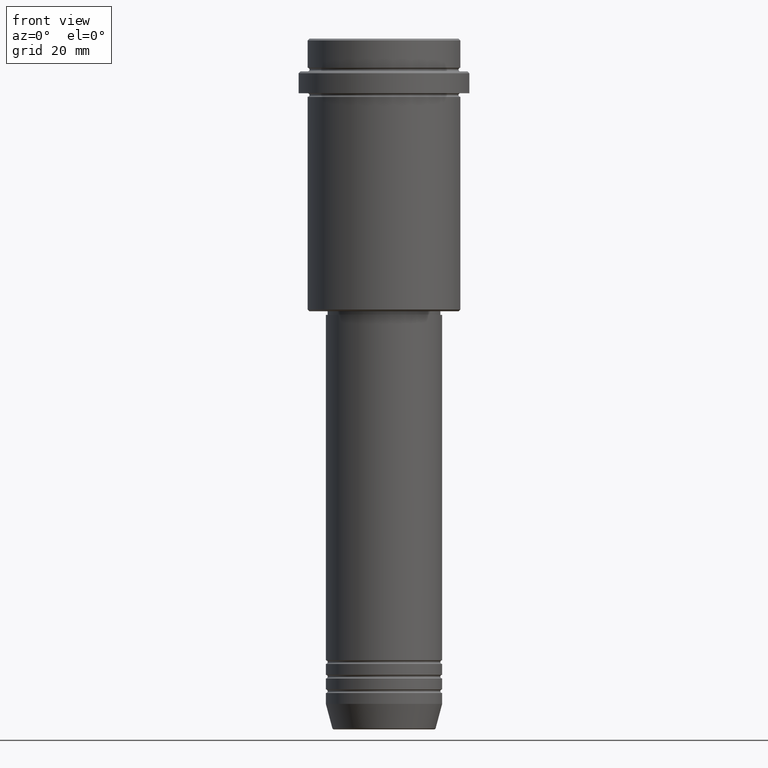
[diagram: clean part render]
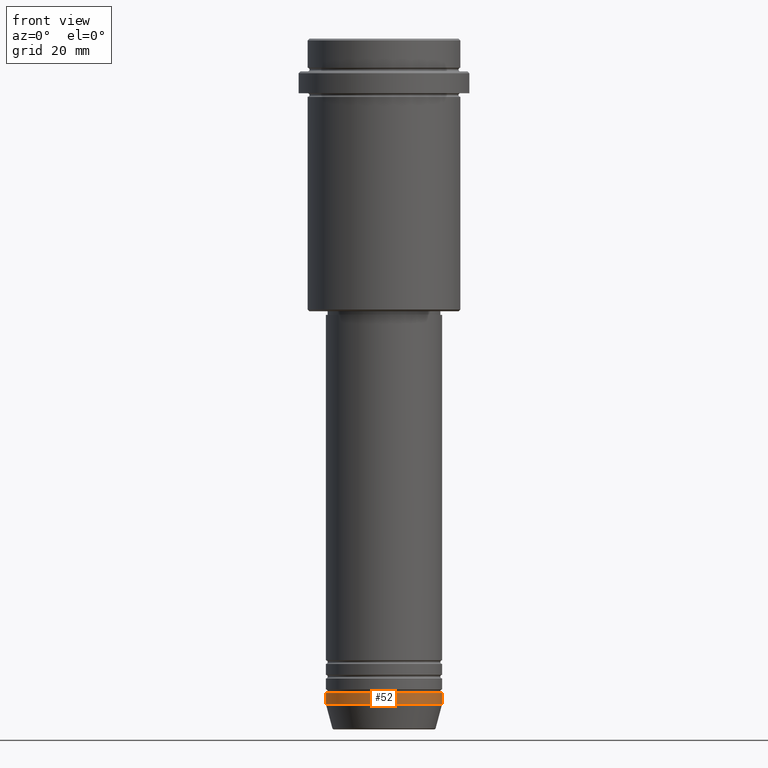
[diagram: same view with one face highlighted and labeled with its STEP entity id]
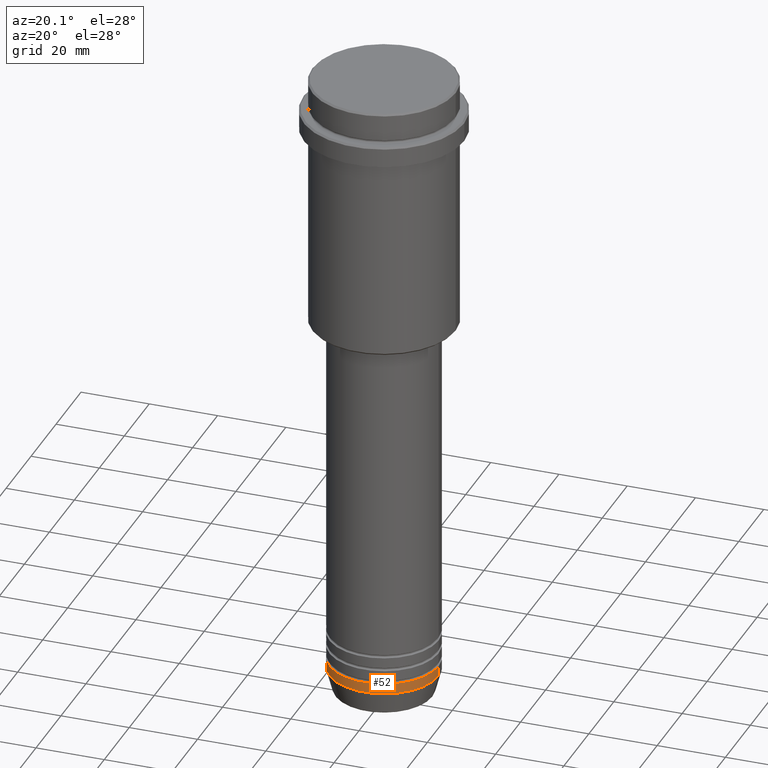
[diagram: same view with one face highlighted and labeled with its STEP entity id]
A machine part, front view. The second image highlights one B-rep face of the part: STEP entity #52.
A second angle (auxiliary view) of the same face is appended — the face is thin or edge-on in the first view.
In plain terms, the highlighted cylindrical surface (partial cylindrical patch) has radius 16 mm, axis along (-0, -0, 1).
Its self-contained STEP definition (entity closure, byte-faithful):
#21 = CYLINDRICAL_SURFACE ( 'NONE', #706, 16.00000000000000000 ) ;
#28 = DIRECTION ( 'NONE',  ( 1.000000000000000000, 0.000000000000000000, 0.000000000000000000 ) ) ;
#52 = ADVANCED_FACE ( 'NONE', ( #460 ), #21, .T. ) ;
#132 = VECTOR ( 'NONE', #405, 1000.000000000000000 ) ;
#154 = EDGE_CURVE ( 'NONE', #1101, #943, #1164, .T. ) ;
#163 = CARTESIAN_POINT ( 'NONE',  ( 16.00000000000000000, 0.000000000000000000, 0.000000000000000000 ) ) ;
#206 = EDGE_LOOP ( 'NONE', ( #1222, #579, #449, #733 ) ) ;
#216 = CARTESIAN_POINT ( 'NONE',  ( 16.00000000000000000, 0.000000000000000000, -180.0000000000000000 ) ) ;
#282 = CARTESIAN_POINT ( 'NONE',  ( -16.00000000000000000, 1.959434878635765131E-15, 0.000000000000000000 ) ) ;
#405 = DIRECTION ( 'NONE',  ( -0.000000000000000000, -0.000000000000000000, 1.000000000000000000 ) ) ;
#413 = CIRCLE ( 'NONE', #889, 16.00000000000000000 ) ;
#419 = CARTESIAN_POINT ( 'NONE',  ( 0.000000000000000000, 0.000000000000000000, -183.0000000000000000 ) ) ;
#449 = ORIENTED_EDGE ( 'NONE', *, *, #590, .T. ) ;
#460 = FACE_OUTER_BOUND ( 'NONE', #206, .T. ) ;
#470 = CARTESIAN_POINT ( 'NONE',  ( -16.00000000000000000, 1.959434878635765131E-15, -180.0000000000000000 ) ) ;
#543 = DIRECTION ( 'NONE',  ( 1.000000000000000000, 0.000000000000000000, 0.000000000000000000 ) ) ;
#579 = ORIENTED_EDGE ( 'NONE', *, *, #1079, .T. ) ;
#590 = EDGE_CURVE ( 'NONE', #644, #1212, #1026, .T. ) ;
#614 = DIRECTION ( 'NONE',  ( -0.000000000000000000, -0.000000000000000000, 1.000000000000000000 ) ) ;
#644 = VERTEX_POINT ( 'NONE', #1157 ) ;
#706 = AXIS2_PLACEMENT_3D ( 'NONE', #892, #1326, #28 ) ;
#733 = ORIENTED_EDGE ( 'NONE', *, *, #1019, .F. ) ;
#803 = DIRECTION ( 'NONE',  ( -0.000000000000000000, -0.000000000000000000, 1.000000000000000000 ) ) ;
#846 = CARTESIAN_POINT ( 'NONE',  ( 0.000000000000000000, 0.000000000000000000, -180.0000000000000000 ) ) ;
#857 = DIRECTION ( 'NONE',  ( -0.000000000000000000, -0.000000000000000000, 1.000000000000000000 ) ) ;
#865 = AXIS2_PLACEMENT_3D ( 'NONE', #846, #614, #1277 ) ;
#889 = AXIS2_PLACEMENT_3D ( 'NONE', #419, #857, #543 ) ;
#892 = CARTESIAN_POINT ( 'NONE',  ( 0.000000000000000000, 0.000000000000000000, 0.000000000000000000 ) ) ;
#943 = VERTEX_POINT ( 'NONE', #470 ) ;
#1019 = EDGE_CURVE ( 'NONE', #943, #1212, #1322, .T. ) ;
#1026 = LINE ( 'NONE', #163, #1273 ) ;
#1079 = EDGE_CURVE ( 'NONE', #1101, #644, #413, .T. ) ;
#1101 = VERTEX_POINT ( 'NONE', #1289 ) ;
#1157 = CARTESIAN_POINT ( 'NONE',  ( 16.00000000000000000, 0.000000000000000000, -183.0000000000000000 ) ) ;
#1164 = LINE ( 'NONE', #282, #132 ) ;
#1212 = VERTEX_POINT ( 'NONE', #216 ) ;
#1222 = ORIENTED_EDGE ( 'NONE', *, *, #154, .F. ) ;
#1273 = VECTOR ( 'NONE', #803, 1000.000000000000000 ) ;
#1277 = DIRECTION ( 'NONE',  ( 1.000000000000000000, 0.000000000000000000, 0.000000000000000000 ) ) ;
#1289 = CARTESIAN_POINT ( 'NONE',  ( -16.00000000000000000, 1.959434878635765131E-15, -183.0000000000000000 ) ) ;
#1322 = CIRCLE ( 'NONE', #865, 16.00000000000000000 ) ;
#1326 = DIRECTION ( 'NONE',  ( -0.000000000000000000, -0.000000000000000000, 1.000000000000000000 ) ) ;